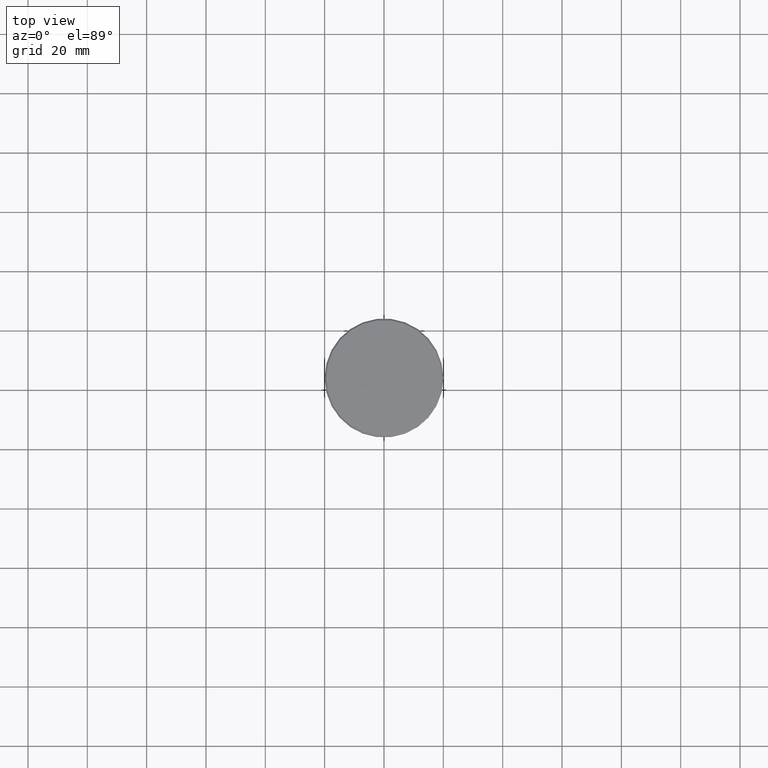
[diagram: clean part render]
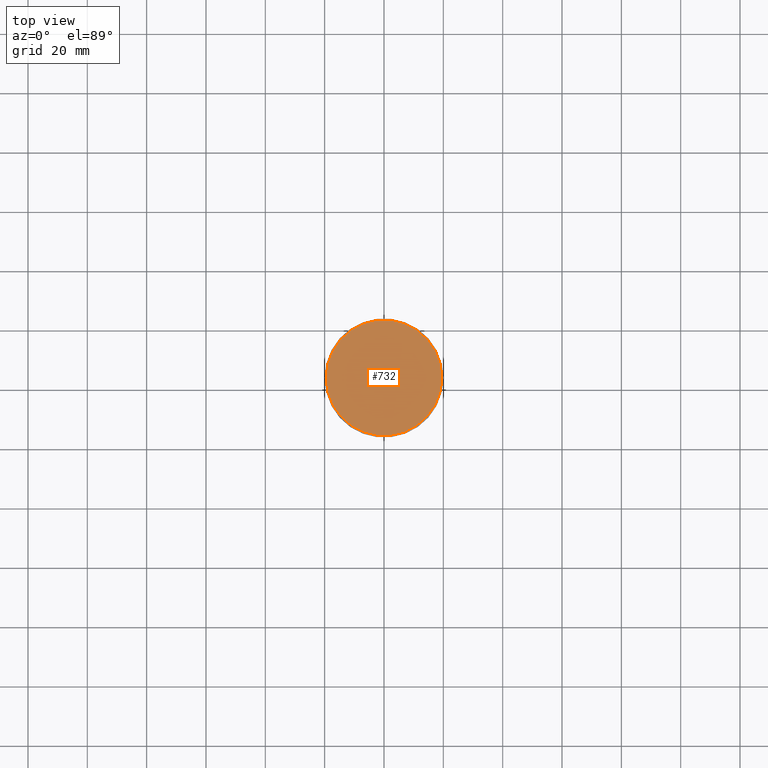
[diagram: same view with one face highlighted and labeled with its STEP entity id]
A machine part, top view. The second image highlights one B-rep face of the part: STEP entity #732.
In plain terms, the highlighted planar face has unit normal (0, -0, 1).
Its self-contained STEP definition (entity closure, byte-faithful):
#6 = AXIS2_PLACEMENT_3D ( 'NONE', #411, #1148, #872 ) ;
#36 = CARTESIAN_POINT ( 'NONE',  ( 0.000000000000000000, 0.000000000000000000, 0.000000000000000000 ) ) ;
#45 = FACE_OUTER_BOUND ( 'NONE', #516, .T. ) ;
#68 = AXIS2_PLACEMENT_3D ( 'NONE', #36, #743, #275 ) ;
#85 = CIRCLE ( 'NONE', #68, 19.50000000000001776 ) ;
#136 = CARTESIAN_POINT ( 'NONE',  ( 0.000000000000000000, 0.000000000000000000, 0.000000000000000000 ) ) ;
#244 = AXIS2_PLACEMENT_3D ( 'NONE', #136, #1050, #510 ) ;
#275 = DIRECTION ( 'NONE',  ( 1.000000000000000000, 0.000000000000000000, 0.000000000000000000 ) ) ;
#295 = CARTESIAN_POINT ( 'NONE',  ( 19.50000000000001776, 2.418677428316023515E-15, 0.000000000000000000 ) ) ;
#309 = VERTEX_POINT ( 'NONE', #473 ) ;
#411 = CARTESIAN_POINT ( 'NONE',  ( 0.000000000000000000, 0.000000000000000000, 0.000000000000000000 ) ) ;
#429 = ORIENTED_EDGE ( 'NONE', *, *, #1068, .T. ) ;
#439 = EDGE_CURVE ( 'NONE', #723, #309, #1173, .T. ) ;
#473 = CARTESIAN_POINT ( 'NONE',  ( -19.50000000000001776, 0.000000000000000000, 0.000000000000000000 ) ) ;
#510 = DIRECTION ( 'NONE',  ( 1.000000000000000000, 0.000000000000000000, 0.000000000000000000 ) ) ;
#516 = EDGE_LOOP ( 'NONE', ( #429, #1007 ) ) ;
#723 = VERTEX_POINT ( 'NONE', #295 ) ;
#732 = ADVANCED_FACE ( 'NONE', ( #45 ), #951, .T. ) ;
#743 = DIRECTION ( 'NONE',  ( -0.000000000000000000, -0.000000000000000000, 1.000000000000000000 ) ) ;
#872 = DIRECTION ( 'NONE',  ( 1.000000000000000000, 0.000000000000000000, 0.000000000000000000 ) ) ;
#951 = PLANE ( 'NONE',  #6 ) ;
#1007 = ORIENTED_EDGE ( 'NONE', *, *, #439, .T. ) ;
#1050 = DIRECTION ( 'NONE',  ( -0.000000000000000000, -0.000000000000000000, 1.000000000000000000 ) ) ;
#1068 = EDGE_CURVE ( 'NONE', #309, #723, #85, .T. ) ;
#1148 = DIRECTION ( 'NONE',  ( 0.000000000000000000, -0.000000000000000000, 1.000000000000000000 ) ) ;
#1173 = CIRCLE ( 'NONE', #244, 19.50000000000001776 ) ;